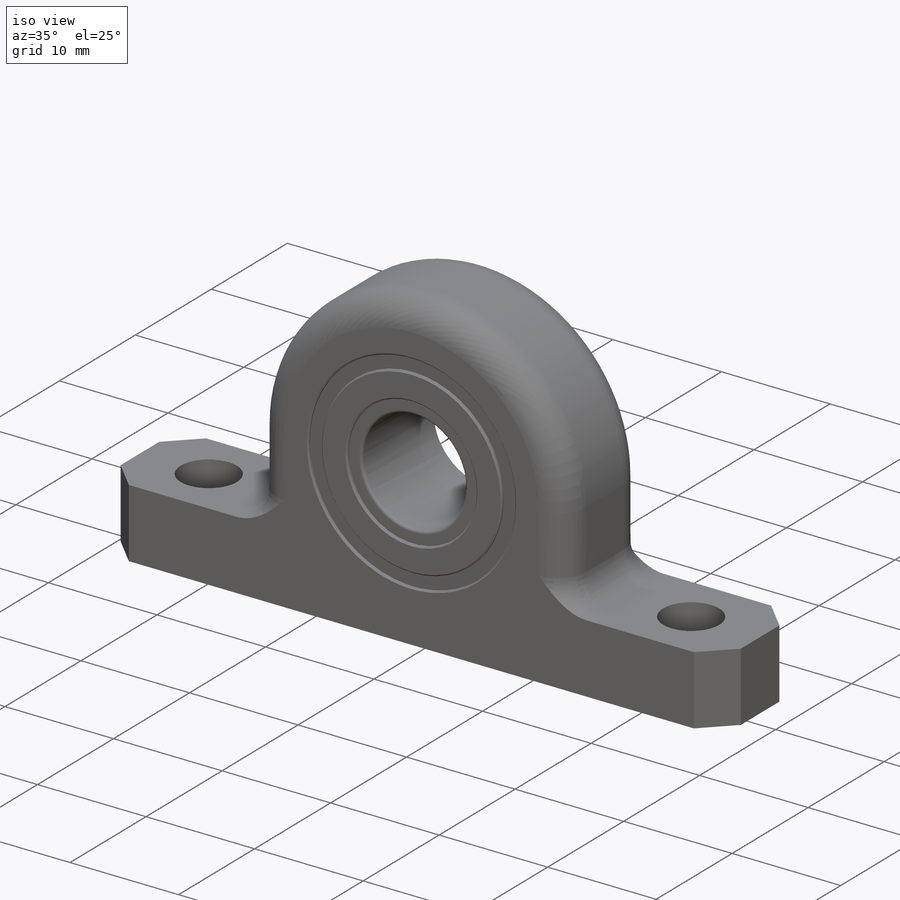
[diagram: iso view]
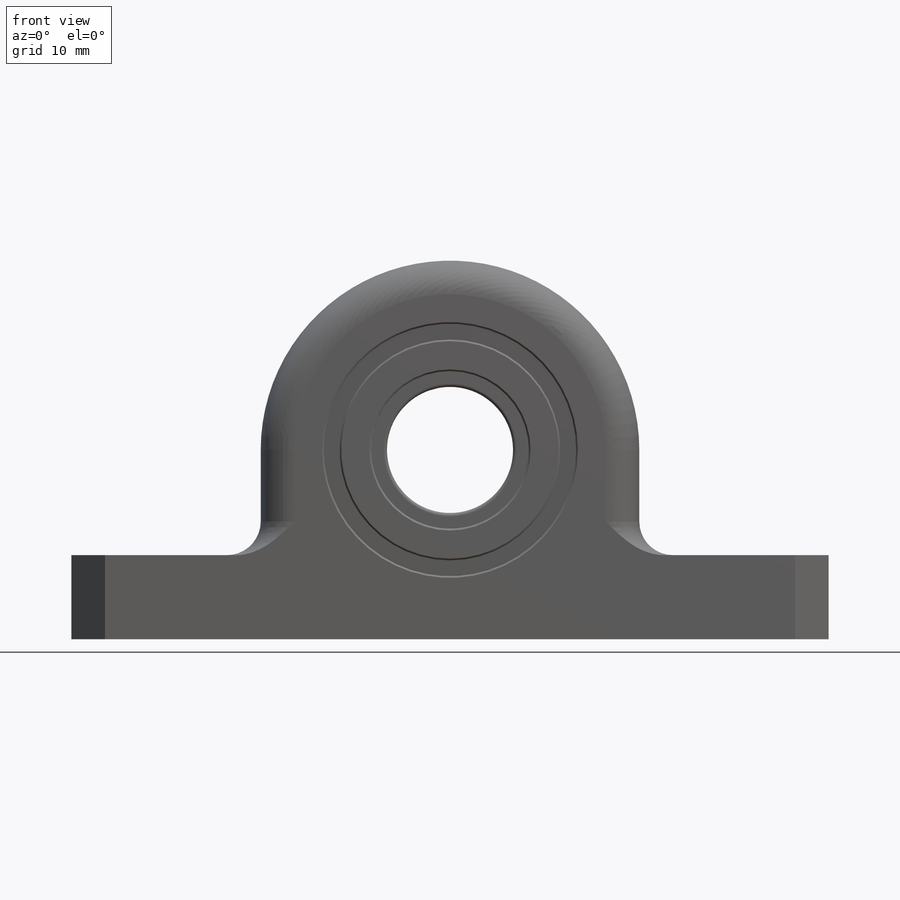
[diagram: front view]
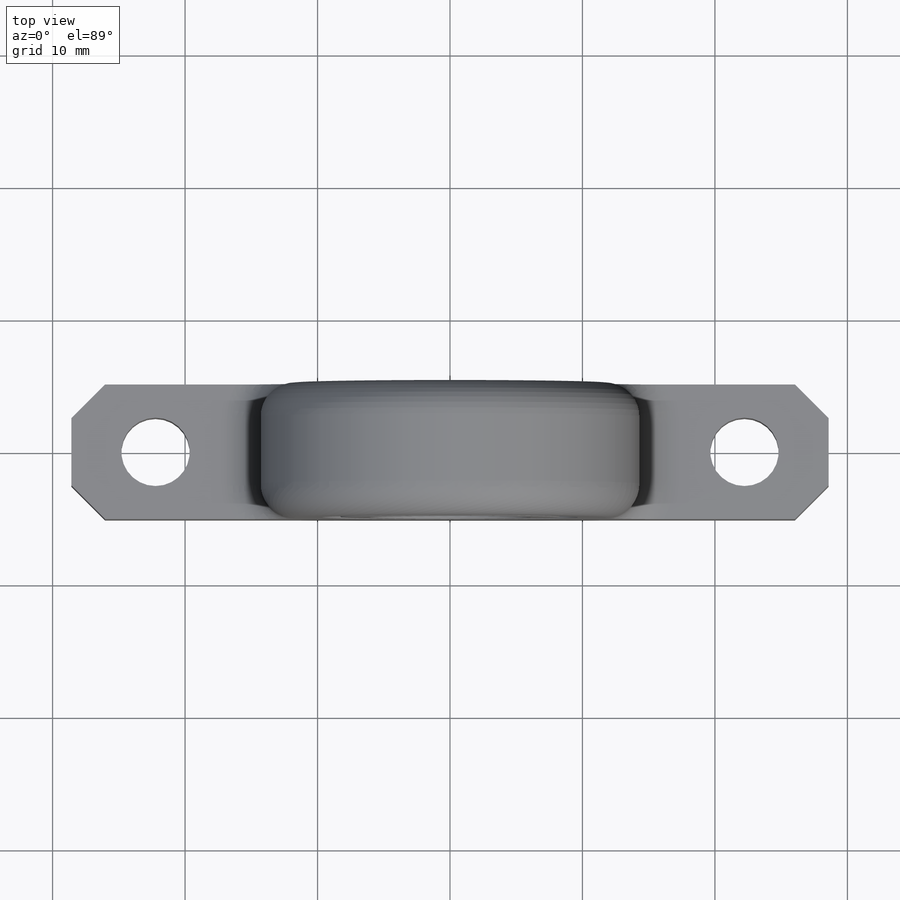
[diagram: top view]
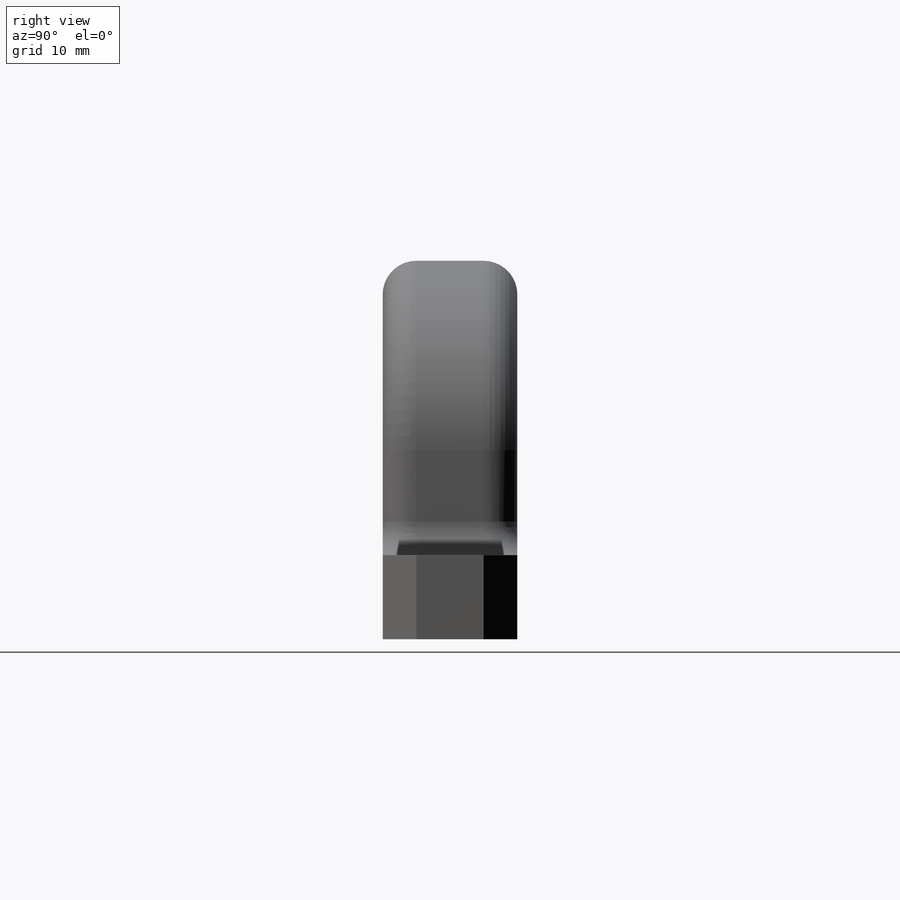
[diagram: right view]
SOLIDWORKS PART (.sldprt)
format: sldprt  version: not decoded by parser v0  size: 333,824 bytes
history: native  units: mm
features: sketch x5, fillet x3, chamfer x2, material x1, extrude x1, cut_extrude x1, revolve x1 (+14 scaffold rows collapsed)
feature tree (28):
  scaffold x14  (default folders/planes/origin — collapsed)
  material  "Material <not specified>"
  sketch  "Sketch1"  dims[c1.shaft dia=9.525mm c1.I=28.575mm c1.D1=~110.645029mm c1.G=6.35mm c1.B=57.15mm c1.A=14.2875mm c2.D1=~62.541626mm]
  sketch  "Sketch2"  dims[F=~5.159375mm E=10.16mm C=44.45mm]
  sketch  "Sketch3"
  extrude  "Extrude1"  [1 undecoded]
  sketch  "Sketch4"  dims[c1.D1=~1.24269mm c2.D1=45.0deg c2.D2=2.54mm]
  cut_extrude  "Cut-Extrude1"  [1 undecoded]
  fillet  "Fillet1"  Radius=2.54mm
  fillet  "Fillet2"  Radius=2.54mm
  chamfer  "Chamfer1"  Distance=0.127mm Angle=45deg
  sketch  "Sketch5"  dims[D1=0.254mm D2=4.7625mm D3=~2.38125mm]
  revolve  "Revolve1"  Angle=360deg
  fillet  "Fillet3"  Radius=0.254mm
  chamfer  "Chamfer2"  Distance=0.127mm Angle=45deg
decode coverage: 10 of 13 modeling features carry decoded parameters
note: ~ marks probable driven/reference dimensions
note: 2 parameter values undecoded
note: suppression state not decoded; provenance and decode notes live in map.json
